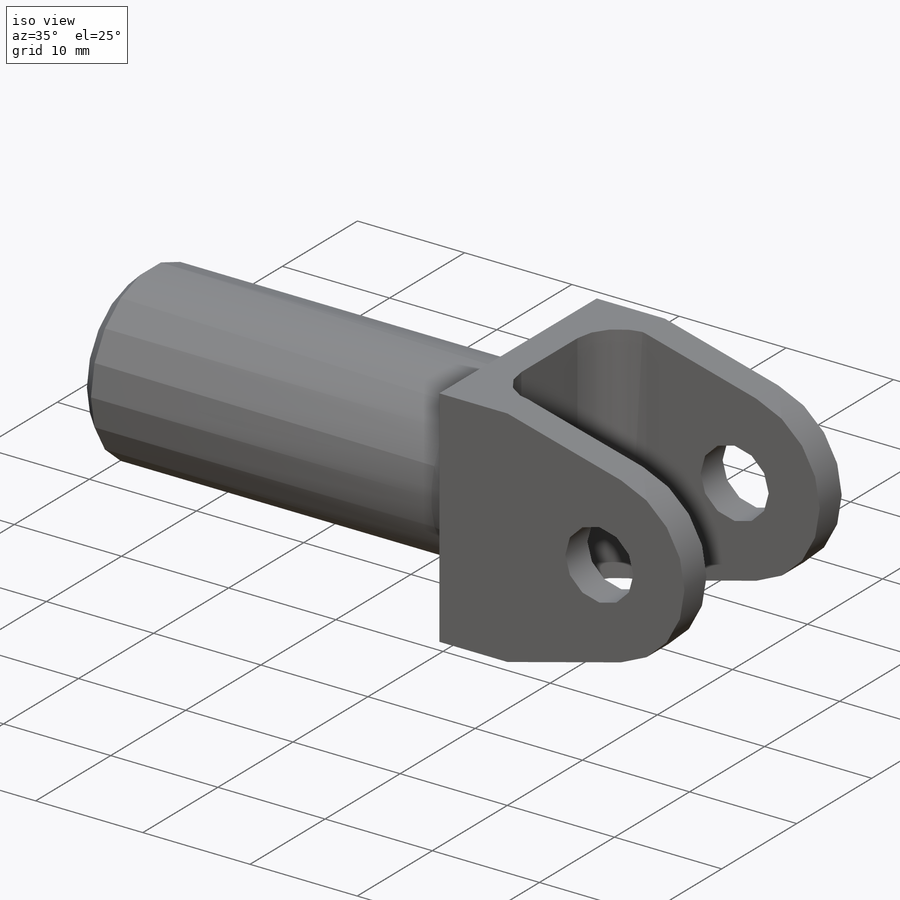
[diagram: iso view]
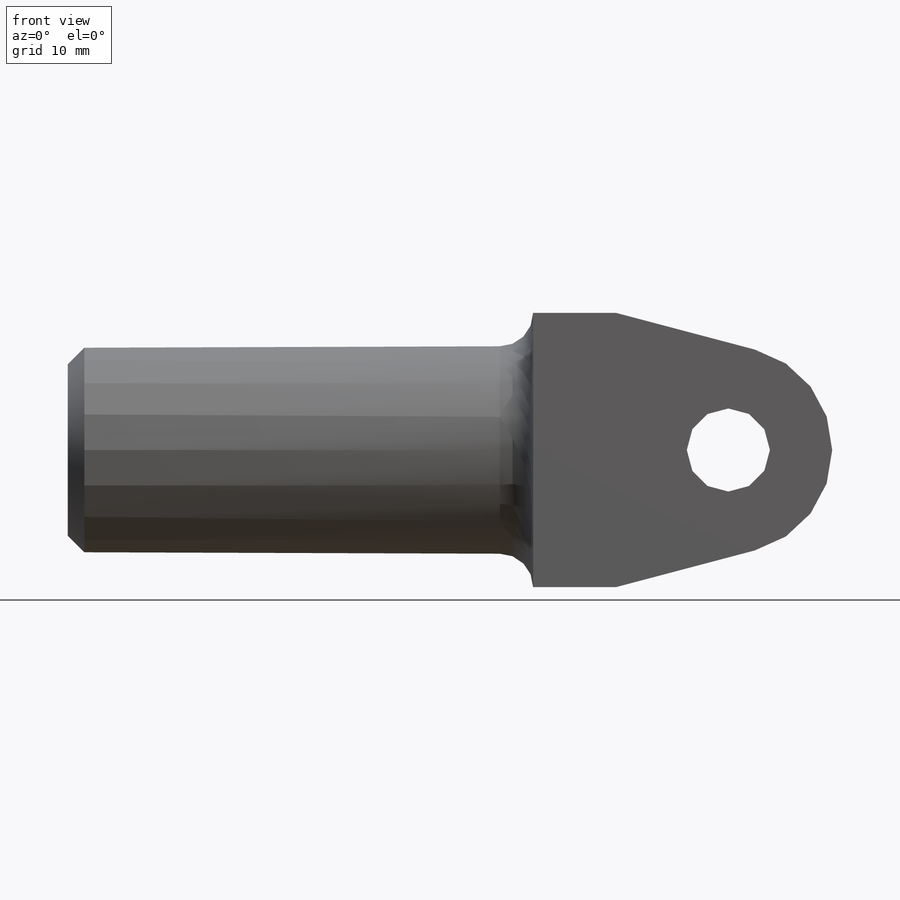
[diagram: front view]
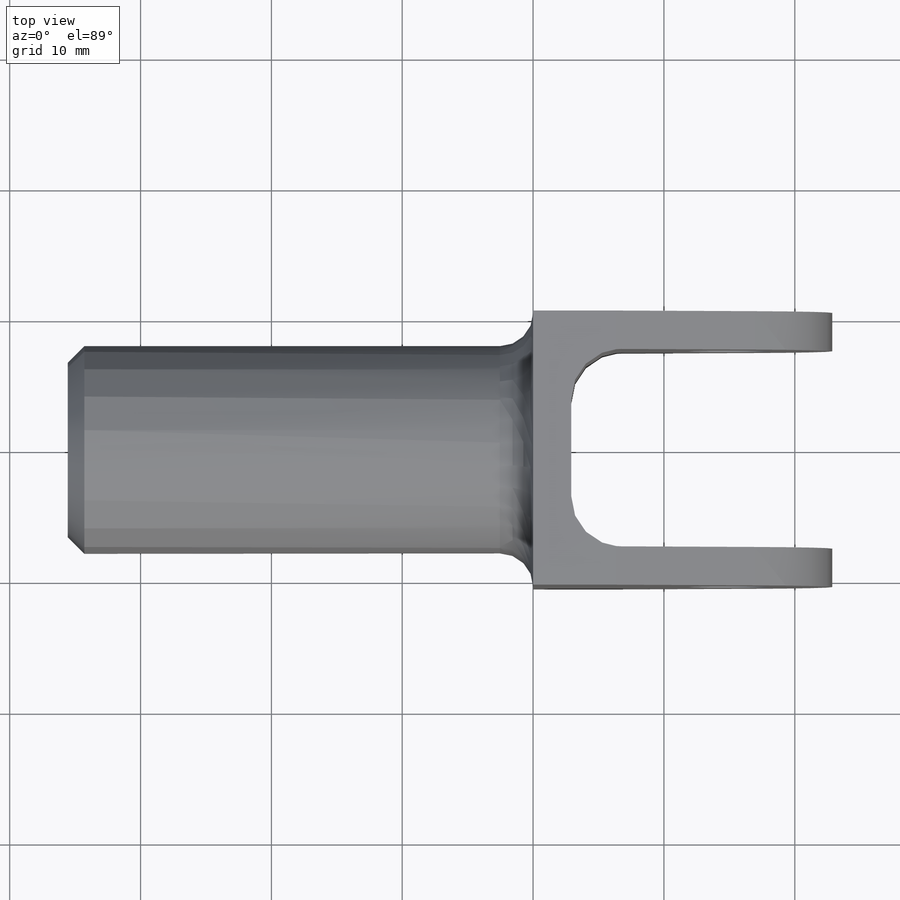
[diagram: top view]
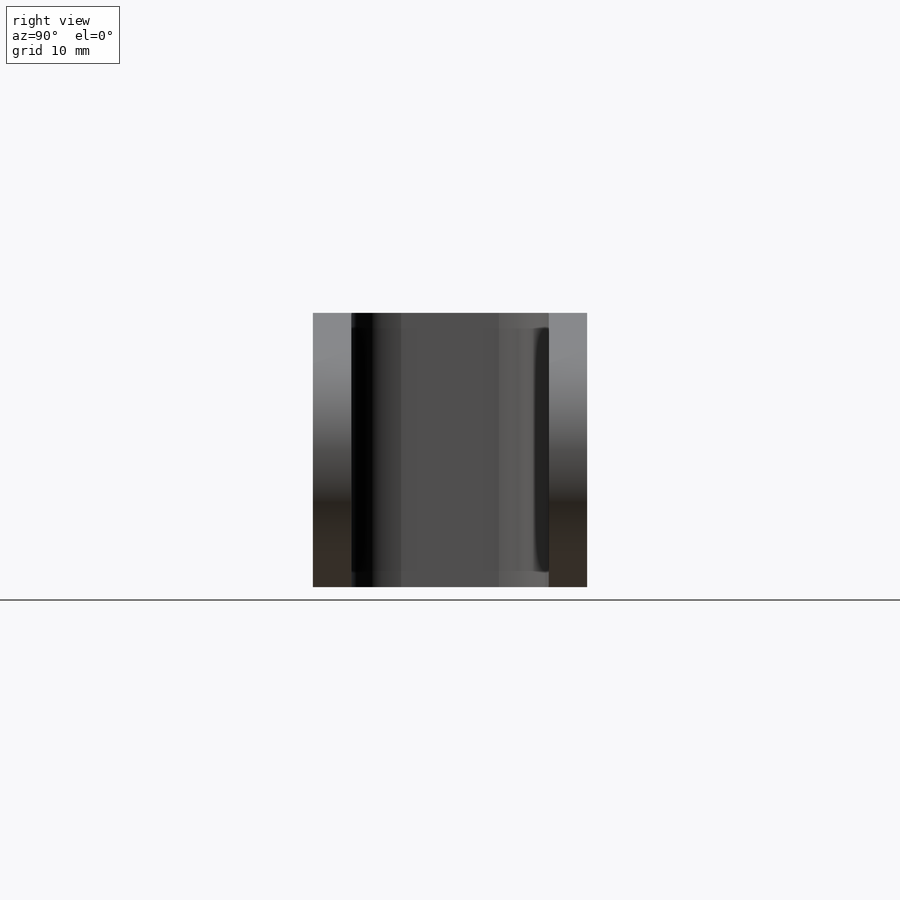
[diagram: right view]
SOLIDWORKS PART (.sldprt)
format: sldprt  version: not decoded by parser v0  size: 955,392 bytes
history: native  units: mm
features: sketch x7, cut_extrude x3, extrude x2, material x1, fillet x1, chamfer x1 (+11 scaffold rows collapsed)
feature tree (26):
  scaffold x11  (default folders/planes/origin — collapsed)
  material  "Alloy Steel"
  sketch  "Sketch1"  dims[D1=20.955mm D2=22.86mm D3=~20.745864mm]
  extrude  "Boss-Extrude1"  Depth=20.955mm
  sketch  "Sketch2"  dims[D3=3.81mm D1=7.5438mm D2=19.939mm]
  cut_extrude  "Cut-Extrude1"  [1 undecoded]
  sketch  "Sketch3"
  sketch  "Sketch Picture2"  dims[D1=6.35mm D2=15.875mm D3=6.35mm]
  cut_extrude  "Cut-Extrude2"  [1 undecoded]
  sketch  "Sketch4"  dims[D1=15.875mm]
  extrude  "Boss-Extrude2"  Depth=35.56mm
  sketch  "Sketch5"  dims[D1=9.525mm]
  cut_extrude  "Cut-Extrude3"  Depth=31.242mm
  fillet  "Fillet1"  Radius=2.54mm
  chamfer  "Chamfer1"  Distance=1.27mm Angle=45deg
  sketch  "3DSketch1"
decode coverage: 10 of 14 modeling features carry decoded parameters
note: ~ marks probable driven/reference dimensions
note: 2 parameter values undecoded
note: suppression state not decoded; provenance and decode notes live in map.json
